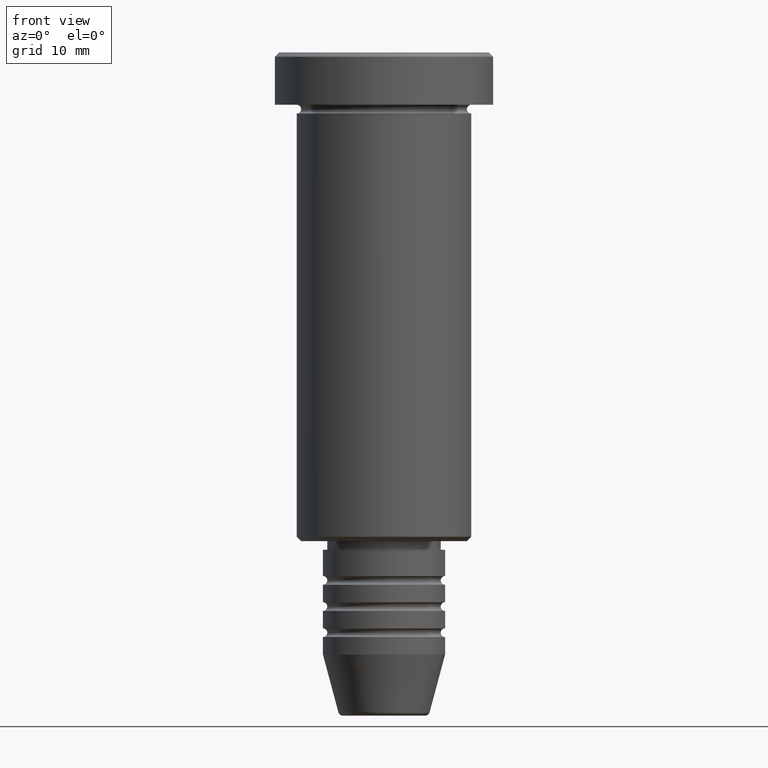
[diagram: clean part render]
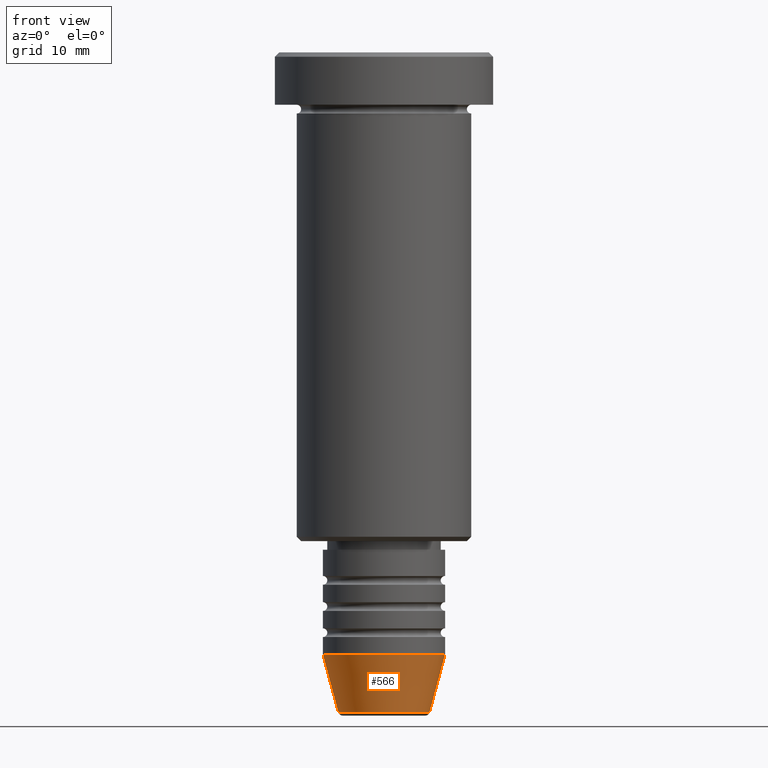
[diagram: same view with one face highlighted and labeled with its STEP entity id]
A machine part, front view. The second image highlights one B-rep face of the part: STEP entity #566.
In plain terms, the highlighted conical surface has half-angle 15 deg.
Its self-contained STEP definition (entity closure, byte-faithful):
#13 = ORIENTED_EDGE ( 'NONE', *, *, #412, .T. ) ;
#14 = CIRCLE ( 'NONE', #359, 5.223655072137187716 ) ;
#24 = ORIENTED_EDGE ( 'NONE', *, *, #474, .F. ) ;
#82 = VERTEX_POINT ( 'NONE', #370 ) ;
#85 = VECTOR ( 'NONE', #289, 1000.000000000000000 ) ;
#203 = EDGE_LOOP ( 'NONE', ( #659, #644, #13, #24 ) ) ;
#229 = DIRECTION ( 'NONE',  ( -0.000000000000000000, -0.000000000000000000, 1.000000000000000000 ) ) ;
#235 = DIRECTION ( 'NONE',  ( 1.000000000000000000, 0.000000000000000000, 0.000000000000000000 ) ) ;
#269 = EDGE_CURVE ( 'NONE', #1145, #1051, #1171, .T. ) ;
#289 = DIRECTION ( 'NONE',  ( 0.2588190451025214056, 0.000000000000000000, 0.9659258262890680902 ) ) ;
#314 = DIRECTION ( 'NONE',  ( -0.000000000000000000, -0.000000000000000000, 1.000000000000000000 ) ) ;
#317 = CONICAL_SURFACE ( 'NONE', #1072, 7.000000000000000000, 0.2617993877991501295 ) ;
#326 = CARTESIAN_POINT ( 'NONE',  ( 0.000000000000000000, 0.000000000000000000, -69.00000000000000000 ) ) ;
#345 = CARTESIAN_POINT ( 'NONE',  ( -5.223655072137187716, 7.484830028987059188E-16, -75.62940952255127058 ) ) ;
#346 = CARTESIAN_POINT ( 'NONE',  ( -7.000000000000000000, 8.572527594031473190E-16, -69.00000000000000000 ) ) ;
#359 = AXIS2_PLACEMENT_3D ( 'NONE', #614, #229, #703 ) ;
#370 = CARTESIAN_POINT ( 'NONE',  ( 7.000000000000000000, 0.000000000000000000, -69.00000000000000000 ) ) ;
#412 = EDGE_CURVE ( 'NONE', #1122, #82, #1107, .T. ) ;
#438 = DIRECTION ( 'NONE',  ( -0.2588190451025214056, 3.169619151431772953E-17, 0.9659258262890680902 ) ) ;
#474 = EDGE_CURVE ( 'NONE', #1051, #82, #1169, .T. ) ;
#501 = DIRECTION ( 'NONE',  ( 1.000000000000000000, 0.000000000000000000, 0.000000000000000000 ) ) ;
#553 = CARTESIAN_POINT ( 'NONE',  ( 7.000000000000000000, 0.000000000000000000, -69.00000000000000000 ) ) ;
#566 = ADVANCED_FACE ( 'NONE', ( #685 ), #317, .T. ) ;
#606 = CARTESIAN_POINT ( 'NONE',  ( -7.000000000000000000, 8.572527594031473190E-16, -69.00000000000000000 ) ) ;
#614 = CARTESIAN_POINT ( 'NONE',  ( 0.000000000000000000, 0.000000000000000000, -75.62940952255127058 ) ) ;
#644 = ORIENTED_EDGE ( 'NONE', *, *, #1109, .T. ) ;
#659 = ORIENTED_EDGE ( 'NONE', *, *, #269, .F. ) ;
#685 = FACE_OUTER_BOUND ( 'NONE', #203, .T. ) ;
#703 = DIRECTION ( 'NONE',  ( 1.000000000000000000, 0.000000000000000000, 0.000000000000000000 ) ) ;
#719 = CARTESIAN_POINT ( 'NONE',  ( 5.223655072137187716, 0.000000000000000000, -75.62940952255127058 ) ) ;
#858 = AXIS2_PLACEMENT_3D ( 'NONE', #1152, #314, #501 ) ;
#1051 = VERTEX_POINT ( 'NONE', #606 ) ;
#1053 = DIRECTION ( 'NONE',  ( -0.000000000000000000, -0.000000000000000000, 1.000000000000000000 ) ) ;
#1072 = AXIS2_PLACEMENT_3D ( 'NONE', #326, #1053, #235 ) ;
#1107 = LINE ( 'NONE', #553, #85 ) ;
#1109 = EDGE_CURVE ( 'NONE', #1145, #1122, #14, .T. ) ;
#1114 = VECTOR ( 'NONE', #438, 1000.000000000000000 ) ;
#1122 = VERTEX_POINT ( 'NONE', #719 ) ;
#1145 = VERTEX_POINT ( 'NONE', #345 ) ;
#1152 = CARTESIAN_POINT ( 'NONE',  ( 0.000000000000000000, 0.000000000000000000, -69.00000000000000000 ) ) ;
#1169 = CIRCLE ( 'NONE', #858, 7.000000000000000000 ) ;
#1171 = LINE ( 'NONE', #346, #1114 ) ;